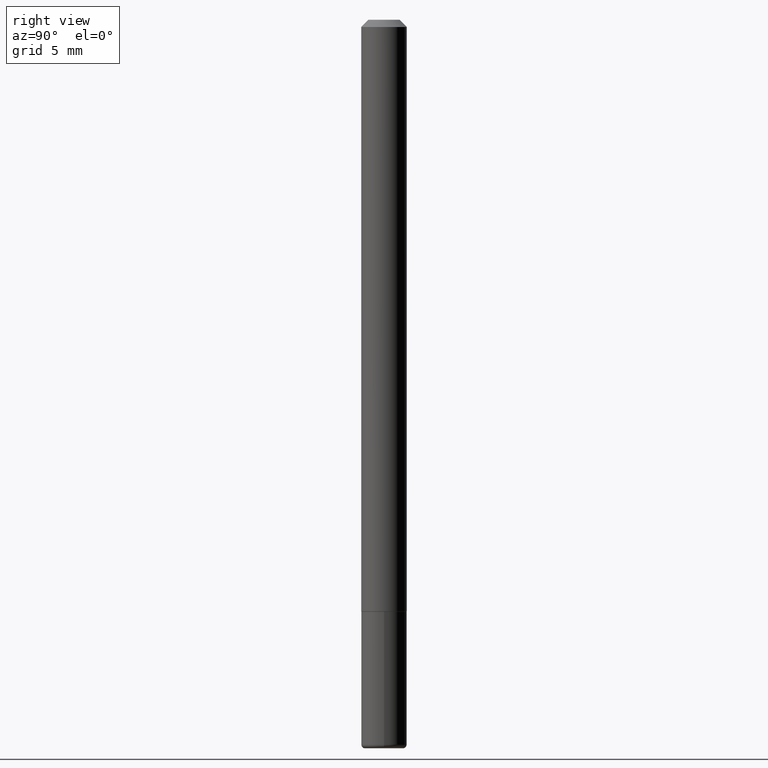
[diagram: clean part render]
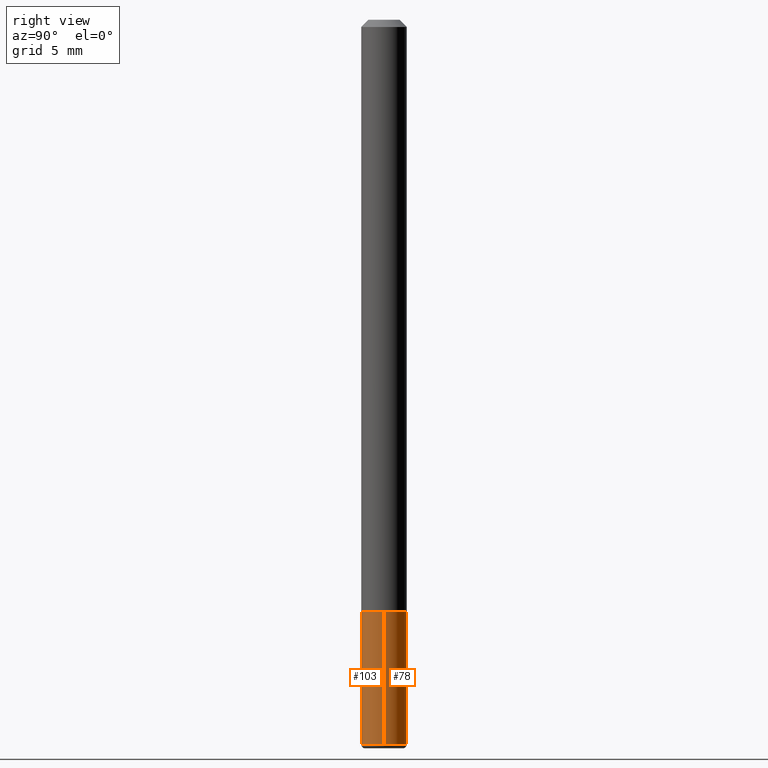
[diagram: same view with one multi-face feature highlighted, each face labeled with its STEP entity id]
A machine part, right view. The highlighted faces form ONE feature: a constant-radius fillet chain: 2 tangent blend faces with common blend radius 1.5875 mm. The faces share edges in the B-rep.
Their STEP definitions:
[1] entity #78 (Cylinder):
#14 = CARTESIAN_POINT ( 'NONE',  ( -0.06250000000000001388, 4.440892098500627148E-16, -3.074334431409317165E-30 ) ) ;
#15 = VERTEX_POINT ( 'NONE', #288 ) ;
#22 = ORIENTED_EDGE ( 'NONE', *, *, #411, .F. ) ;
#27 = CARTESIAN_POINT ( 'NONE',  ( 0.06249999999999992367, -7.384483031653253552E-15, -1.990000000000000435 ) ) ;
#54 = VERTEX_POINT ( 'NONE', #415 ) ;
#56 = ORIENTED_EDGE ( 'NONE', *, *, #138, .F. ) ;
#70 = CIRCLE ( 'NONE', #192, 0.06250000000000001388 ) ;
#71 = VERTEX_POINT ( 'NONE', #27 ) ;
#78 = ADVANCED_FACE ( 'NONE', ( #125 ), #198, .T. ) ;
#84 = EDGE_CURVE ( 'NONE', #71, #15, #268, .T. ) ;
#101 = DIRECTION ( 'NONE',  ( -2.445468806185136597E-29, 3.491481338843145583E-15, 1.000000000000000000 ) ) ;
#109 = DIRECTION ( 'NONE',  ( 1.000000000000000000, -6.982962677686261189E-15, 0.000000000000000000 ) ) ;
#110 = VERTEX_POINT ( 'NONE', #131 ) ;
#125 = FACE_OUTER_BOUND ( 'NONE', #398, .T. ) ;
#131 = CARTESIAN_POINT ( 'NONE',  ( -0.06250000000000001388, -5.866763310108924432E-15, -1.625000000000000222 ) ) ;
#138 = EDGE_CURVE ( 'NONE', #54, #110, #70, .T. ) ;
#144 = LINE ( 'NONE', #146, #347 ) ;
#145 = ORIENTED_EDGE ( 'NONE', *, *, #405, .T. ) ;
#146 = CARTESIAN_POINT ( 'NONE',  ( 0.06250000000000001388, -4.364351673553918173E-16, 3.047610484872460571E-30 ) ) ;
#185 = DIRECTION ( 'NONE',  ( -2.445468806185136877E-29, 3.491481338843145188E-15, 1.000000000000000000 ) ) ;
#192 = AXIS2_PLACEMENT_3D ( 'NONE', #202, #363, #109 ) ;
#196 = DIRECTION ( 'NONE',  ( 1.000000000000000000, -6.982962677686261189E-15, 0.000000000000000000 ) ) ;
#198 = CYLINDRICAL_SURFACE ( 'NONE', #199, 0.06250000000000001388 ) ;
#199 = AXIS2_PLACEMENT_3D ( 'NONE', #285, #409, #249 ) ;
#202 = CARTESIAN_POINT ( 'NONE',  ( 3.973886810050848091E-29, -5.673657175620113002E-15, -1.625000000000000222 ) ) ;
#249 = DIRECTION ( 'NONE',  ( 1.000000000000000000, -6.982962677686267499E-15, 4.876176775795935793E-29 ) ) ;
#250 = CARTESIAN_POINT ( 'NONE',  ( 4.866482924308422769E-29, -6.948047864297861094E-15, -1.990000000000000435 ) ) ;
#268 = CIRCLE ( 'NONE', #414, 0.06250000000000001388 ) ;
#285 = CARTESIAN_POINT ( 'NONE',  ( 0.000000000000000000, 0.000000000000000000, 0.000000000000000000 ) ) ;
#288 = CARTESIAN_POINT ( 'NONE',  ( -0.06249999999999992367, -6.503958654447799267E-15, -1.990000000000000435 ) ) ;
#301 = LINE ( 'NONE', #14, #395 ) ;
#347 = VECTOR ( 'NONE', #397, 39.37007874015748143 ) ;
#363 = DIRECTION ( 'NONE',  ( -2.445468806185136597E-29, 3.491481338843145583E-15, 1.000000000000000000 ) ) ;
#391 = ORIENTED_EDGE ( 'NONE', *, *, #84, .T. ) ;
#395 = VECTOR ( 'NONE', #185, 39.37007874015748143 ) ;
#397 = DIRECTION ( 'NONE',  ( -2.445468806185136877E-29, 3.491481338843145188E-15, 1.000000000000000000 ) ) ;
#398 = EDGE_LOOP ( 'NONE', ( #391, #145, #56, #22 ) ) ;
#405 = EDGE_CURVE ( 'NONE', #15, #110, #301, .T. ) ;
#409 = DIRECTION ( 'NONE',  ( -2.445468806185136597E-29, 3.491481338843145583E-15, 1.000000000000000000 ) ) ;
#411 = EDGE_CURVE ( 'NONE', #71, #54, #144, .T. ) ;
#414 = AXIS2_PLACEMENT_3D ( 'NONE', #250, #101, #196 ) ;
#415 = CARTESIAN_POINT ( 'NONE',  ( 0.06250000000000001388, -6.110092342975504671E-15, -1.625000000000000222 ) ) ;
[2] entity #103 (Cylinder):
#14 = CARTESIAN_POINT ( 'NONE',  ( -0.06250000000000001388, 4.440892098500627148E-16, -3.074334431409317165E-30 ) ) ;
#15 = VERTEX_POINT ( 'NONE', #288 ) ;
#25 = DIRECTION ( 'NONE',  ( 1.000000000000000000, -6.982962677686267499E-15, 4.876176775795935793E-29 ) ) ;
#27 = CARTESIAN_POINT ( 'NONE',  ( 0.06249999999999992367, -7.384483031653253552E-15, -1.990000000000000435 ) ) ;
#35 = AXIS2_PLACEMENT_3D ( 'NONE', #128, #221, #25 ) ;
#44 = ORIENTED_EDGE ( 'NONE', *, *, #411, .T. ) ;
#54 = VERTEX_POINT ( 'NONE', #415 ) ;
#69 = DIRECTION ( 'NONE',  ( 1.000000000000000000, -6.982962677686261189E-15, 0.000000000000000000 ) ) ;
#71 = VERTEX_POINT ( 'NONE', #27 ) ;
#73 = DIRECTION ( 'NONE',  ( -2.445468806185136597E-29, 3.491481338843145583E-15, 1.000000000000000000 ) ) ;
#83 = ORIENTED_EDGE ( 'NONE', *, *, #368, .F. ) ;
#103 = ADVANCED_FACE ( 'NONE', ( #319 ), #312, .T. ) ;
#105 = CIRCLE ( 'NONE', #211, 0.06250000000000001388 ) ;
#110 = VERTEX_POINT ( 'NONE', #131 ) ;
#128 = CARTESIAN_POINT ( 'NONE',  ( 0.000000000000000000, 0.000000000000000000, 0.000000000000000000 ) ) ;
#131 = CARTESIAN_POINT ( 'NONE',  ( -0.06250000000000001388, -5.866763310108924432E-15, -1.625000000000000222 ) ) ;
#139 = CARTESIAN_POINT ( 'NONE',  ( 4.866482924308422769E-29, -6.948047864297861094E-15, -1.990000000000000435 ) ) ;
#144 = LINE ( 'NONE', #146, #347 ) ;
#146 = CARTESIAN_POINT ( 'NONE',  ( 0.06250000000000001388, -4.364351673553918173E-16, 3.047610484872460571E-30 ) ) ;
#150 = DIRECTION ( 'NONE',  ( -2.445468806185136597E-29, 3.491481338843145583E-15, 1.000000000000000000 ) ) ;
#185 = DIRECTION ( 'NONE',  ( -2.445468806185136877E-29, 3.491481338843145188E-15, 1.000000000000000000 ) ) ;
#189 = ORIENTED_EDGE ( 'NONE', *, *, #405, .F. ) ;
#211 = AXIS2_PLACEMENT_3D ( 'NONE', #305, #150, #278 ) ;
#215 = EDGE_LOOP ( 'NONE', ( #189, #342, #44, #83 ) ) ;
#221 = DIRECTION ( 'NONE',  ( -2.445468806185136597E-29, 3.491481338843145583E-15, 1.000000000000000000 ) ) ;
#241 = CIRCLE ( 'NONE', #277, 0.06250000000000001388 ) ;
#246 = EDGE_CURVE ( 'NONE', #15, #71, #241, .T. ) ;
#277 = AXIS2_PLACEMENT_3D ( 'NONE', #139, #73, #69 ) ;
#278 = DIRECTION ( 'NONE',  ( 1.000000000000000000, -6.982962677686261189E-15, 0.000000000000000000 ) ) ;
#288 = CARTESIAN_POINT ( 'NONE',  ( -0.06249999999999992367, -6.503958654447799267E-15, -1.990000000000000435 ) ) ;
#301 = LINE ( 'NONE', #14, #395 ) ;
#305 = CARTESIAN_POINT ( 'NONE',  ( 3.973886810050848091E-29, -5.673657175620113002E-15, -1.625000000000000222 ) ) ;
#312 = CYLINDRICAL_SURFACE ( 'NONE', #35, 0.06250000000000001388 ) ;
#319 = FACE_OUTER_BOUND ( 'NONE', #215, .T. ) ;
#342 = ORIENTED_EDGE ( 'NONE', *, *, #246, .T. ) ;
#347 = VECTOR ( 'NONE', #397, 39.37007874015748143 ) ;
#368 = EDGE_CURVE ( 'NONE', #110, #54, #105, .T. ) ;
#395 = VECTOR ( 'NONE', #185, 39.37007874015748143 ) ;
#397 = DIRECTION ( 'NONE',  ( -2.445468806185136877E-29, 3.491481338843145188E-15, 1.000000000000000000 ) ) ;
#405 = EDGE_CURVE ( 'NONE', #15, #110, #301, .T. ) ;
#411 = EDGE_CURVE ( 'NONE', #71, #54, #144, .T. ) ;
#415 = CARTESIAN_POINT ( 'NONE',  ( 0.06250000000000001388, -6.110092342975504671E-15, -1.625000000000000222 ) ) ;